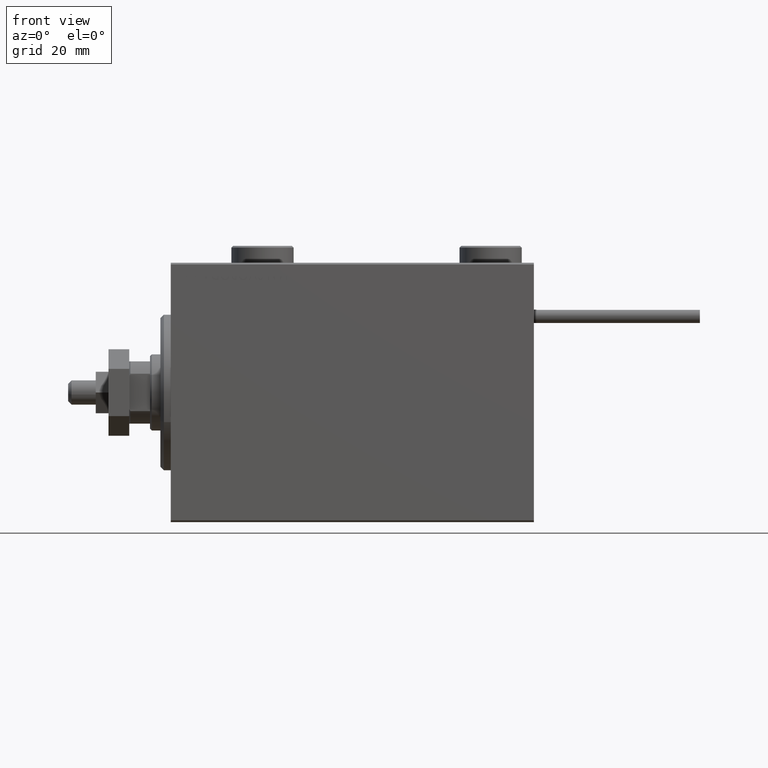
[diagram: clean part render]
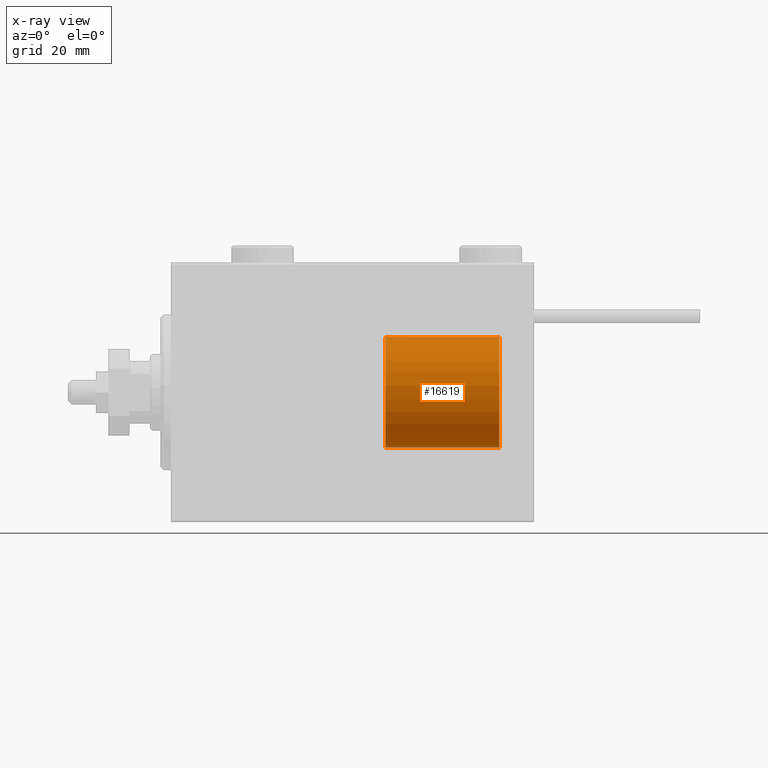
[diagram: x-ray — body ghosted, one internal face saturated and labeled with its STEP entity id]
A machine part, front view, then the same camera in x-ray: the body is ghosted and one INTERNAL B-rep face — a face not visible from any outside direction — is saturated and labeled: STEP entity #16619.
In plain terms, the highlighted cylindrical surface (partial cylindrical patch) has radius 16 mm, axis along (1, -0, -0).
Its self-contained STEP definition (entity closure, byte-faithful):
#104 = CARTESIAN_POINT ( 'NONE',  ( 0.000000000000000000, 0.000000000000000000, 33.00000000000000000 ) ) ;
#2944 = DIRECTION ( 'NONE',  ( -1.000000000000000000, 0.000000000000000000, 0.000000000000000000 ) ) ;
#3466 = VERTEX_POINT ( 'NONE', #35950 ) ;
#4555 = VERTEX_POINT ( 'NONE', #40840 ) ;
#5826 = VERTEX_POINT ( 'NONE', #48580 ) ;
#6936 = VECTOR ( 'NONE', #22210, 1000.000000000000000 ) ;
#7632 = DIRECTION ( 'NONE',  ( -0.000000000000000000, -0.000000000000000000, -1.000000000000000000 ) ) ;
#8337 = ORIENTED_EDGE ( 'NONE', *, *, #31674, .T. ) ;
#9851 = CARTESIAN_POINT ( 'NONE',  ( 0.000000000000000000, 0.000000000000000000, 0.000000000000000000 ) ) ;
#13539 = EDGE_CURVE ( 'NONE', #5826, #16591, #27642, .T. ) ;
#13852 = AXIS2_PLACEMENT_3D ( 'NONE', #39643, #7632, #2944 ) ;
#15680 = CYLINDRICAL_SURFACE ( 'NONE', #13852, 16.00000000000000000 ) ;
#16414 = CARTESIAN_POINT ( 'NONE',  ( -16.00000000000000000, 0.000000000000000000, 33.00000000000000000 ) ) ;
#16586 = ORIENTED_EDGE ( 'NONE', *, *, #36496, .F. ) ;
#16591 = VERTEX_POINT ( 'NONE', #42800 ) ;
#16619 = ADVANCED_FACE ( 'NONE', ( #47214 ), #15680, .T. ) ;
#17029 = EDGE_LOOP ( 'NONE', ( #16586, #35317, #44731, #8337 ) ) ;
#21806 = DIRECTION ( 'NONE',  ( 1.000000000000000000, 0.000000000000000000, 0.000000000000000000 ) ) ;
#22210 = DIRECTION ( 'NONE',  ( -0.000000000000000000, -0.000000000000000000, -1.000000000000000000 ) ) ;
#24332 = CIRCLE ( 'NONE', #27702, 16.00000000000000000 ) ;
#24575 = DIRECTION ( 'NONE',  ( 0.000000000000000000, 0.000000000000000000, 1.000000000000000000 ) ) ;
#27642 = LINE ( 'NONE', #16414, #37013 ) ;
#27702 = AXIS2_PLACEMENT_3D ( 'NONE', #104, #24575, #36810 ) ;
#31674 = EDGE_CURVE ( 'NONE', #16591, #3466, #34317, .T. ) ;
#32307 = DIRECTION ( 'NONE',  ( -0.000000000000000000, -0.000000000000000000, -1.000000000000000000 ) ) ;
#33432 = CARTESIAN_POINT ( 'NONE',  ( 16.00000000000000000, 1.959434878635765131E-15, 33.00000000000000000 ) ) ;
#33942 = LINE ( 'NONE', #33432, #6936 ) ;
#34317 = CIRCLE ( 'NONE', #38480, 16.00000000000000000 ) ;
#35317 = ORIENTED_EDGE ( 'NONE', *, *, #35460, .F. ) ;
#35460 = EDGE_CURVE ( 'NONE', #5826, #4555, #24332, .T. ) ;
#35950 = CARTESIAN_POINT ( 'NONE',  ( 16.00000000000000000, 1.959434878635765131E-15, 0.000000000000000000 ) ) ;
#36496 = EDGE_CURVE ( 'NONE', #4555, #3466, #33942, .T. ) ;
#36810 = DIRECTION ( 'NONE',  ( 1.000000000000000000, 0.000000000000000000, 0.000000000000000000 ) ) ;
#37013 = VECTOR ( 'NONE', #32307, 1000.000000000000000 ) ;
#38480 = AXIS2_PLACEMENT_3D ( 'NONE', #9851, #45016, #21806 ) ;
#39643 = CARTESIAN_POINT ( 'NONE',  ( 0.000000000000000000, 0.000000000000000000, 33.00000000000000000 ) ) ;
#40840 = CARTESIAN_POINT ( 'NONE',  ( 16.00000000000000000, 1.959434878635765131E-15, 33.00000000000000000 ) ) ;
#42800 = CARTESIAN_POINT ( 'NONE',  ( -16.00000000000000000, 0.000000000000000000, 0.000000000000000000 ) ) ;
#44731 = ORIENTED_EDGE ( 'NONE', *, *, #13539, .T. ) ;
#45016 = DIRECTION ( 'NONE',  ( 0.000000000000000000, 0.000000000000000000, 1.000000000000000000 ) ) ;
#47214 = FACE_OUTER_BOUND ( 'NONE', #17029, .T. ) ;
#48580 = CARTESIAN_POINT ( 'NONE',  ( -16.00000000000000000, 0.000000000000000000, 33.00000000000000000 ) ) ;